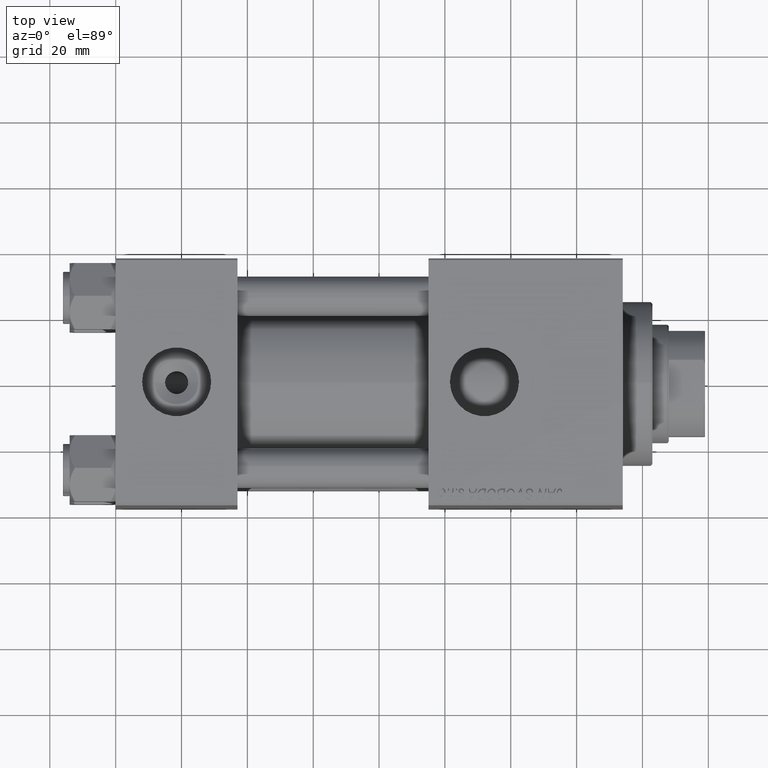
[diagram: clean part render]
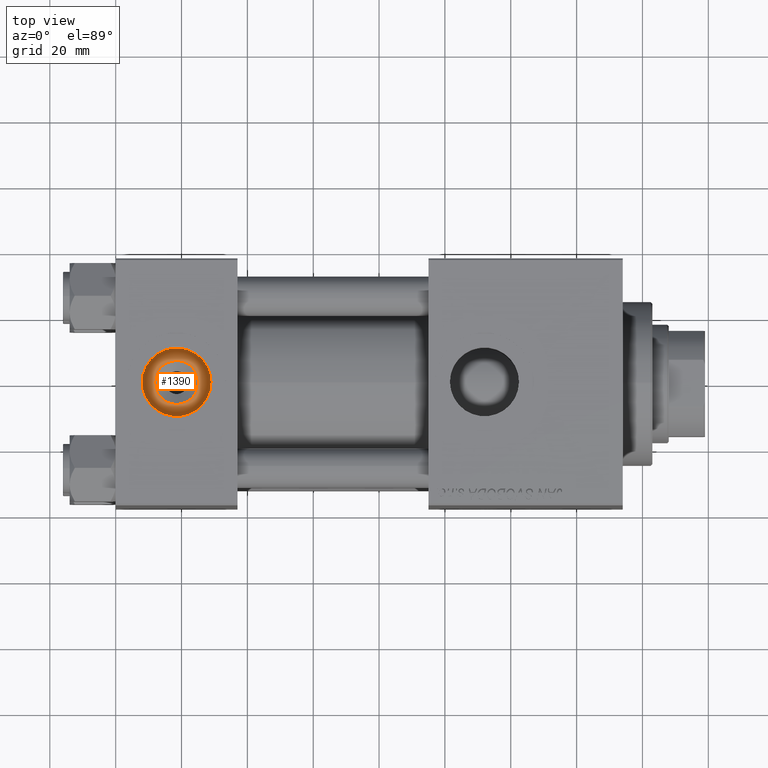
[diagram: same view with one face highlighted and labeled with its STEP entity id]
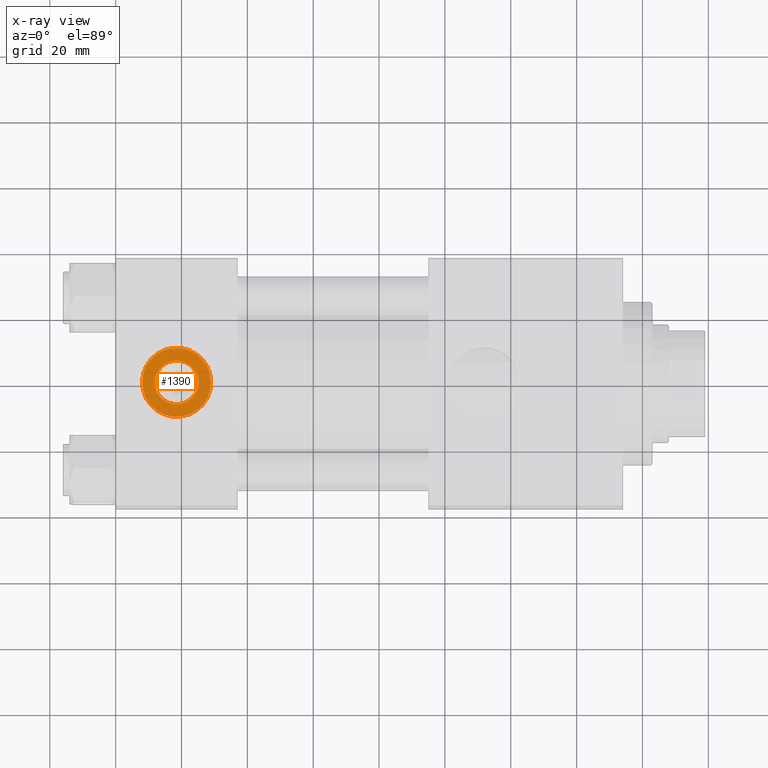
[diagram: x-ray of the same camera — body ghosted, the highlighted face saturated]
A machine part, top view. The second image highlights one B-rep face of the part: STEP entity #1390.
The next image is the same camera in x-ray: the body ghosted, the highlighted face saturated — about 0% of this face is hidden behind the body in this view.
In plain terms, the highlighted planar face has unit normal (0, 0, 1).
Its self-contained STEP definition (entity closure, byte-faithful):
#566 = CARTESIAN_POINT ( 'NONE',  ( 18.50000000000000000, -5.204170427930421283E-15, 26.69999999999999929 ) ) ;
#679 = ORIENTED_EDGE ( 'NONE', *, *, #38502, .T. ) ;
#1390 = ADVANCED_FACE ( 'NONE', ( #43144, #11674 ), #27168, .T. ) ;
#2881 = EDGE_CURVE ( 'NONE', #9443, #47165, #47755, .T. ) ;
#5600 = CARTESIAN_POINT ( 'NONE',  ( 28.98000000000000043, -5.204170427930421283E-15, 26.69999999999999929 ) ) ;
#7571 = CARTESIAN_POINT ( 'NONE',  ( 11.86000000000001364, -4.391004953296580751E-15, 26.69999999999999929 ) ) ;
#7907 = EDGE_CURVE ( 'NONE', #45625, #33389, #38127, .T. ) ;
#8018 = DIRECTION ( 'NONE',  ( 0.000000000000000000, 0.000000000000000000, 1.000000000000000000 ) ) ;
#8889 = DIRECTION ( 'NONE',  ( -0.000000000000000000, -0.000000000000000000, -1.000000000000000000 ) ) ;
#9443 = VERTEX_POINT ( 'NONE', #7571 ) ;
#10432 = DIRECTION ( 'NONE',  ( 1.000000000000000000, 0.000000000000000000, 0.000000000000000000 ) ) ;
#10755 = EDGE_CURVE ( 'NONE', #33389, #45625, #22791, .T. ) ;
#11440 = AXIS2_PLACEMENT_3D ( 'NONE', #23499, #8018, #31626 ) ;
#11674 = FACE_OUTER_BOUND ( 'NONE', #27750, .T. ) ;
#12446 = DIRECTION ( 'NONE',  ( 1.000000000000000000, 0.000000000000000000, 0.000000000000000000 ) ) ;
#12699 = CARTESIAN_POINT ( 'NONE',  ( 18.50000000000000000, -5.204170427930421283E-15, 26.69999999999999929 ) ) ;
#15388 = AXIS2_PLACEMENT_3D ( 'NONE', #566, #16540, #47007 ) ;
#16540 = DIRECTION ( 'NONE',  ( 0.000000000000000000, 0.000000000000000000, 1.000000000000000000 ) ) ;
#19541 = CARTESIAN_POINT ( 'NONE',  ( 18.50000000000000000, -5.204170427930421283E-15, 26.69999999999999929 ) ) ;
#20708 = CARTESIAN_POINT ( 'NONE',  ( 8.019999999999999574, -3.920740582423995006E-15, 26.69999999999999929 ) ) ;
#22746 = ORIENTED_EDGE ( 'NONE', *, *, #7907, .T. ) ;
#22791 = CIRCLE ( 'NONE', #11440, 10.48000000000000043 ) ;
#23499 = CARTESIAN_POINT ( 'NONE',  ( 18.50000000000000000, -5.204170427930421283E-15, 26.69999999999999929 ) ) ;
#23794 = AXIS2_PLACEMENT_3D ( 'NONE', #12699, #8889, #12446 ) ;
#23836 = DIRECTION ( 'NONE',  ( 1.000000000000000000, 0.000000000000000000, -0.000000000000000000 ) ) ;
#27168 = PLANE ( 'NONE',  #50149 ) ;
#27522 = CARTESIAN_POINT ( 'NONE',  ( 25.13999999999998636, -5.204170427930421283E-15, 26.69999999999999929 ) ) ;
#27750 = EDGE_LOOP ( 'NONE', ( #22746, #37182 ) ) ;
#29141 = AXIS2_PLACEMENT_3D ( 'NONE', #30000, #41155, #10432 ) ;
#30000 = CARTESIAN_POINT ( 'NONE',  ( 18.50000000000000000, -5.204170427930421283E-15, 26.69999999999999929 ) ) ;
#30318 = CIRCLE ( 'NONE', #23794, 6.639999999999986358 ) ;
#31626 = DIRECTION ( 'NONE',  ( 1.000000000000000000, 0.000000000000000000, 0.000000000000000000 ) ) ;
#33389 = VERTEX_POINT ( 'NONE', #20708 ) ;
#37182 = ORIENTED_EDGE ( 'NONE', *, *, #10755, .T. ) ;
#38127 = CIRCLE ( 'NONE', #15388, 10.48000000000000043 ) ;
#38502 = EDGE_CURVE ( 'NONE', #47165, #9443, #30318, .T. ) ;
#41155 = DIRECTION ( 'NONE',  ( -0.000000000000000000, -0.000000000000000000, -1.000000000000000000 ) ) ;
#42899 = DIRECTION ( 'NONE',  ( 0.000000000000000000, 0.000000000000000000, 1.000000000000000000 ) ) ;
#43144 = FACE_BOUND ( 'NONE', #44990, .T. ) ;
#44990 = EDGE_LOOP ( 'NONE', ( #679, #46697 ) ) ;
#45625 = VERTEX_POINT ( 'NONE', #5600 ) ;
#46697 = ORIENTED_EDGE ( 'NONE', *, *, #2881, .T. ) ;
#47007 = DIRECTION ( 'NONE',  ( 1.000000000000000000, 0.000000000000000000, 0.000000000000000000 ) ) ;
#47165 = VERTEX_POINT ( 'NONE', #27522 ) ;
#47755 = CIRCLE ( 'NONE', #29141, 6.639999999999986358 ) ;
#50149 = AXIS2_PLACEMENT_3D ( 'NONE', #19541, #42899, #23836 ) ;